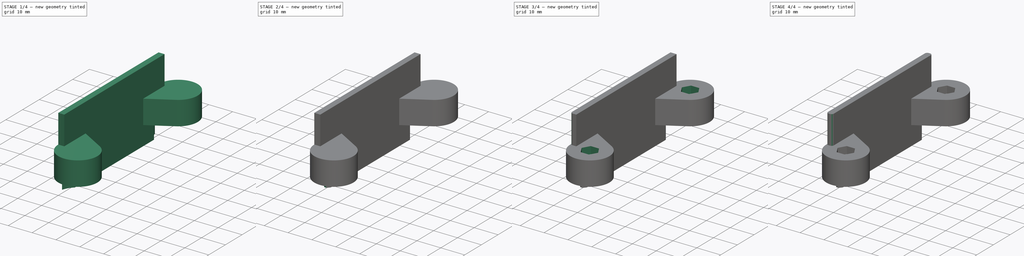
[diagram: build sequence overview — one tinted view per stage of 4, left to right]
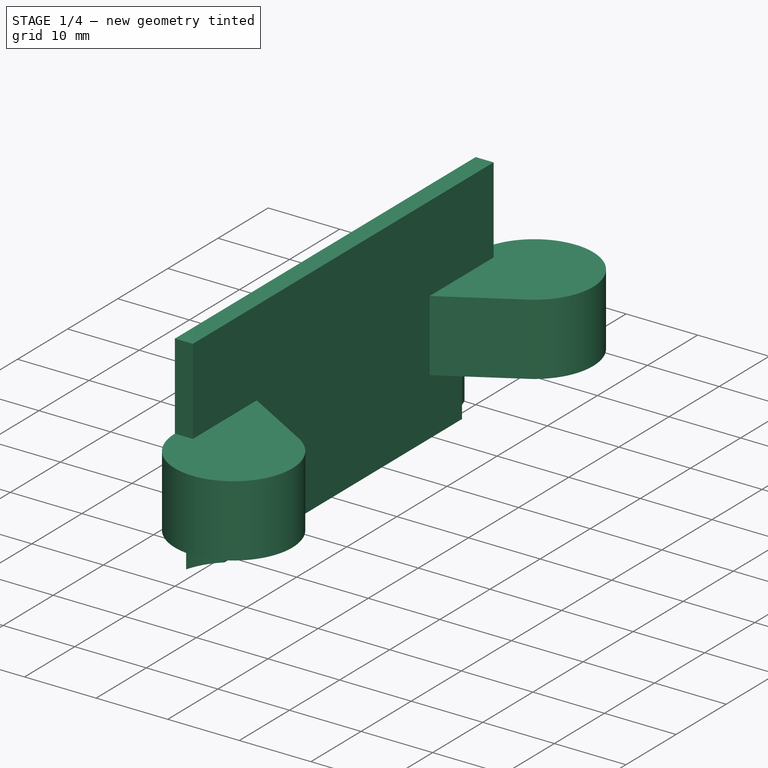
[diagram: stage 1 of 4 — iso view after this stage's code; geometry added in this stage tinted green]
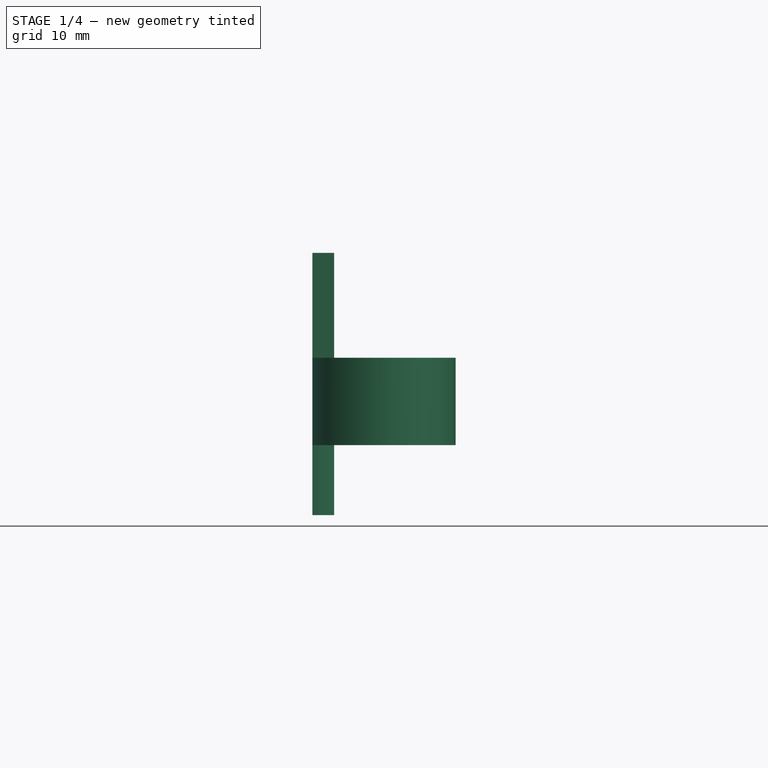
[diagram: stage 1 of 4 — front view after this stage's code; geometry added in this stage tinted green]
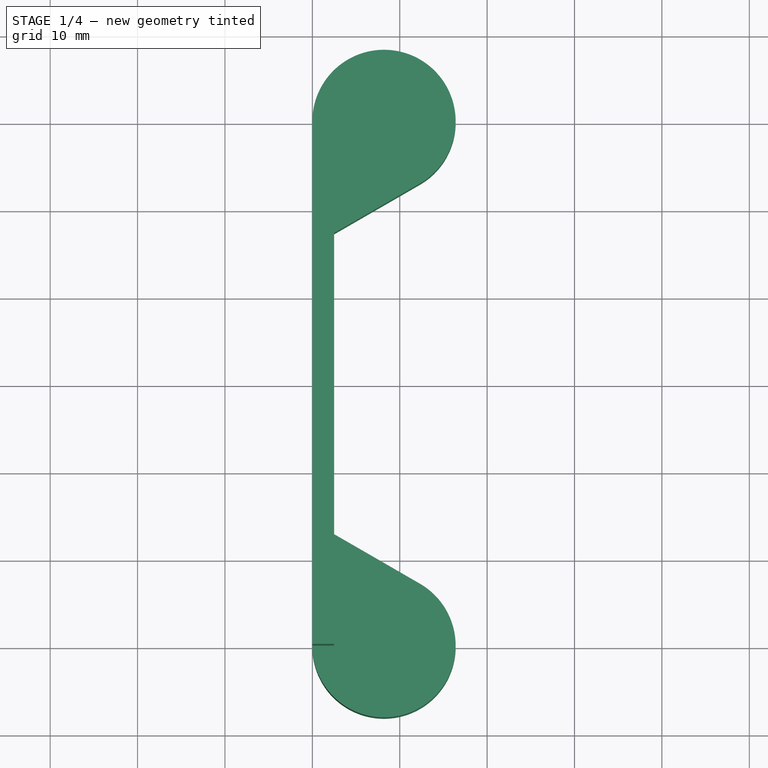
[diagram: stage 1 of 4 — top view after this stage's code; geometry added in this stage tinted green]
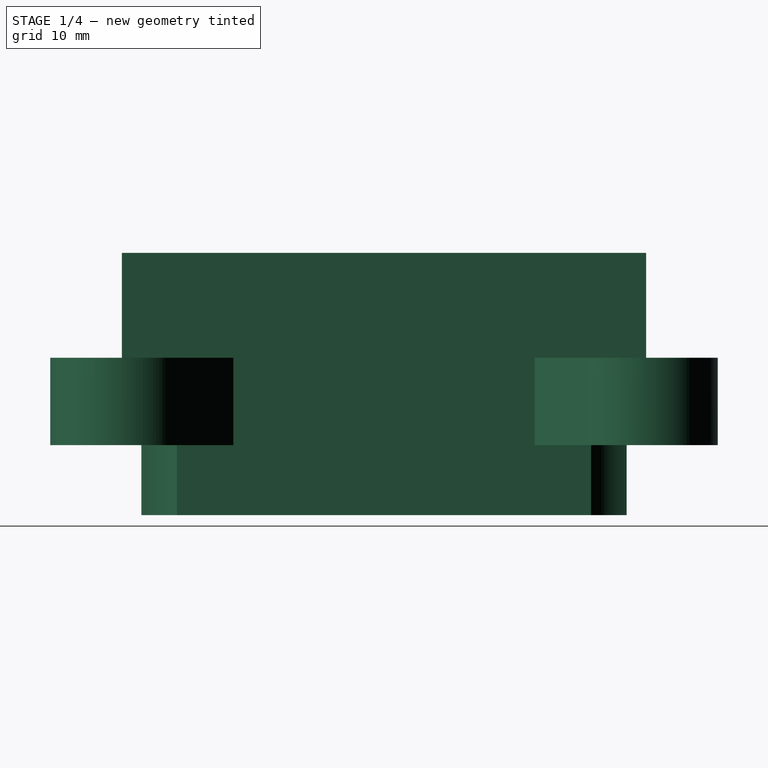
[diagram: stage 1 of 4 — right view after this stage's code; geometry added in this stage tinted green]
FCSTD DOCUMENT  (FreeCAD 0.20R29603 (Git))
Label: RecvHolder
License: All rights reserved
LicenseURL: http://en.wikipedia.org/wiki/All_rights_reserved
objects: PartDesign::Fillet×8, Sketcher::SketchObject×5, PartDesign::Pad×2, PartDesign::Pocket×2, PartDesign::Hole×1, PartDesign::Body×1
note: 32 computed .brp shape members not serialized (recipe doc carries the construction recipe); baked Part::Feature solids carry a one-line shape summary decoded from their .brp

FEATURE [Sketcher::SketchObject] Sketch
  FullyConstrained = true
  MapMode = 5
  Placement = pos=(0,0,0) rot=(0.57735,0.57735,0.57735;2.0944rad)
  Support = -> [YZ_Plane]
  sketch-geometry (4):
    g0: LineSegment StartX=30 StartY=0 StartZ=0 EndX=-30 EndY=0 EndZ=0
    g1: LineSegment StartX=-30 StartY=0 StartZ=0 EndX=-30 EndY=30 EndZ=0
    g2: LineSegment StartX=-30 StartY=30 StartZ=0 EndX=30 EndY=30 EndZ=0
    g3: LineSegment StartX=30 StartY=30 StartZ=0 EndX=30 EndY=0 EndZ=0
  constraints (12):
    c: Coincident(g0,g1)
    c: Coincident(g1,g2)
    c: Coincident(g2,g3)
    c: Coincident(g3,g0)
    c: Horizontal(g0)
    c: Horizontal(g2)
    c: Vertical(g1)
    c: Vertical(g3)
    c: PointOnObject(g0,g-1)
    c: DistanceX(g-1,g0) = 30
    c: DistanceX(g0,g-1) = 30
    c: DistanceY(g-1,g1) = 30
FEATURE [PartDesign::Pad] Pad
  Direction = (1,-2e-16,3e-16)
  Length = 2.5
  Length2 = 10
  Placement = pos=(0,0,0) rot=(0.57735,0.57735,0.57735;2.0944rad)
  Profile = -> Sketch
  ReferenceAxis = -> Sketch [N_Axis]
  Type = 0
FEATURE [Sketcher::SketchObject] Sketch001  label="huj;"
  AttachmentOffset = pos=(0,0,8) rot=(0,0,-1;1.5708rad)
  FullyConstrained = true
  MapMode = 5
  Placement = pos=(0,0,8) rot=(0,0,-1;1.5708rad)
  Support = -> [XY_Plane]
  sketch-geometry (6):
    g0: ArcOfCircle CenterX=-30 CenterY=8.2 CenterZ=0 NormalX=0 NormalY=0 NormalZ=1 AngleXU=0 Radius=8.2 StartAngle=0.523599 EndAngle=5.36814
    g1: ArcOfCircle CenterX=30 CenterY=8.2 CenterZ=0 NormalX=0 NormalY=0 NormalZ=1 AngleXU=0 Radius=8.2 StartAngle=4.05664 EndAngle=8.90118
    g2: LineSegment StartX=-22.8986 StartY=12.3 StartZ=0 EndX=-17.2406 EndY=2.5 EndZ=0
    g3: LineSegment StartX=22.8986 StartY=12.3 StartZ=0 EndX=17.2406 EndY=2.5 EndZ=0
    g4: LineSegment StartX=-25 StartY=1.70077 StartZ=0 EndX=-17.2406 EndY=2.5 EndZ=0
    g5: LineSegment StartX=17.2406 StartY=2.5 StartZ=0 EndX=25 EndY=1.70077 EndZ=0
  constraints (18):
    c: DistanceY(g-1,g0) = 8.2
    c: DistanceY(g-1,g1) = 8.2
    c: Diameter(g0) = 16.4
    c: Diameter(g1) = 16.4
    c: DistanceX(g-1,g1) = 30
    c: DistanceX(g0,g-1) = 30
    c: DistanceX(g0,g-1) = 25
    c: DistanceX(g-1,g1) = 25
    c: Tangent(g3,g1) = -1.5708
    c: Tangent(g2,g0) = 1.5708
    c: DistanceY(g-1,g2) = 2.5
    c: DistanceY(g-1,g3) = 2.5
    c: Angle(g-1,g2) = 2.0944
    c: Angle(g-1,g3) = 1.0472
    c: Coincident(g4,g0)
    c: Coincident(g4,g2)
    c: Coincident(g5,g3)
    c: Coincident(g5,g1)
FEATURE [PartDesign::Pad] Pad001
  BaseFeature = -> Pad
  Direction = (0,0,1)
  Length = 10
  Length2 = 10
  Placement = pos=(0,0,0) rot=(0.57735,0.57735,0.57735;2.0944rad)
  Profile = -> Sketch001
  ReferenceAxis = -> Sketch001 [N_Axis]
  Type = 0
FEATURE [Sketcher::SketchObject] Sketch002
  FullyConstrained = true
  MapMode = 5
  Placement = pos=(0,0,-6.7e-15) rot=(0.707107,0.707107,0;3.14159rad)
  Support = -> [Pad001]
  sketch-geometry (2):
    g0: Circle CenterX=-30 CenterY=8.2 CenterZ=0 NormalX=0 NormalY=0 NormalZ=1 AngleXU=0 Radius=8.5
    g1: Circle CenterX=30 CenterY=8.2 CenterZ=0 NormalX=0 NormalY=0 NormalZ=1 AngleXU=0 Radius=8.5
  constraints (6):
    c: DistanceY(g-1,g1) = 8.2
    c: DistanceY(g-1,g0) = 8.2
    c: Diameter(g0) = 17
    c: Diameter(g1) = 17
    c: DistanceX(g0,g-1) = 30
    c: DistanceX(g-1,g1) = 30
FEATURE [PartDesign::Pocket] Pocket
  BaseFeature = -> Pad001
  Direction = (-7e-16,7e-16,1)
  Length = 8
  Length2 = 5
  Placement = pos=(0,0,0) rot=(0.57735,0.57735,0.57735;2.0944rad)
  Profile = -> Sketch002
  ReferenceAxis = -> Sketch002 [N_Axis]
  Type = 0
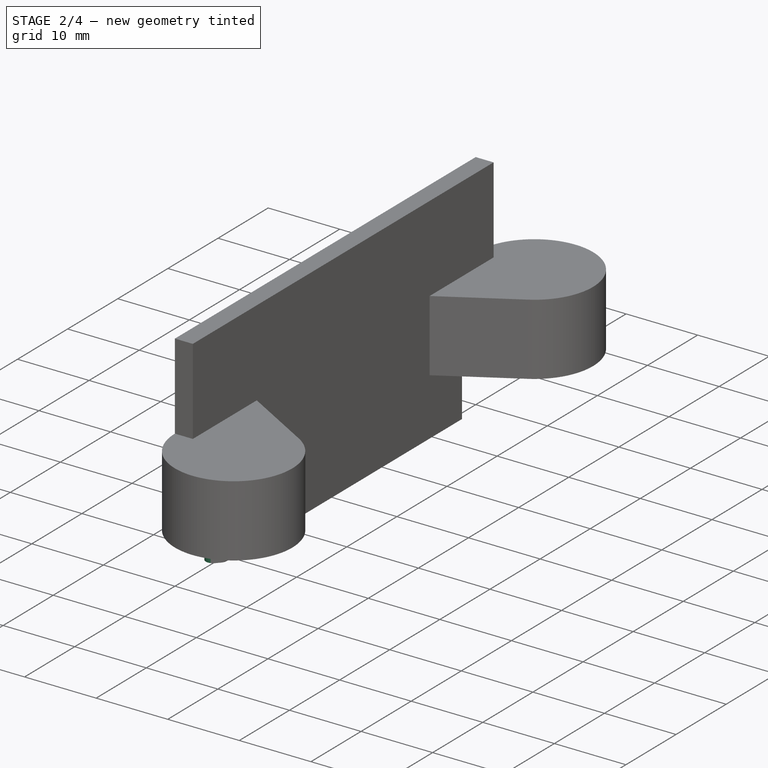
[diagram: stage 2 of 4 — iso view after this stage's code; geometry added in this stage tinted green]
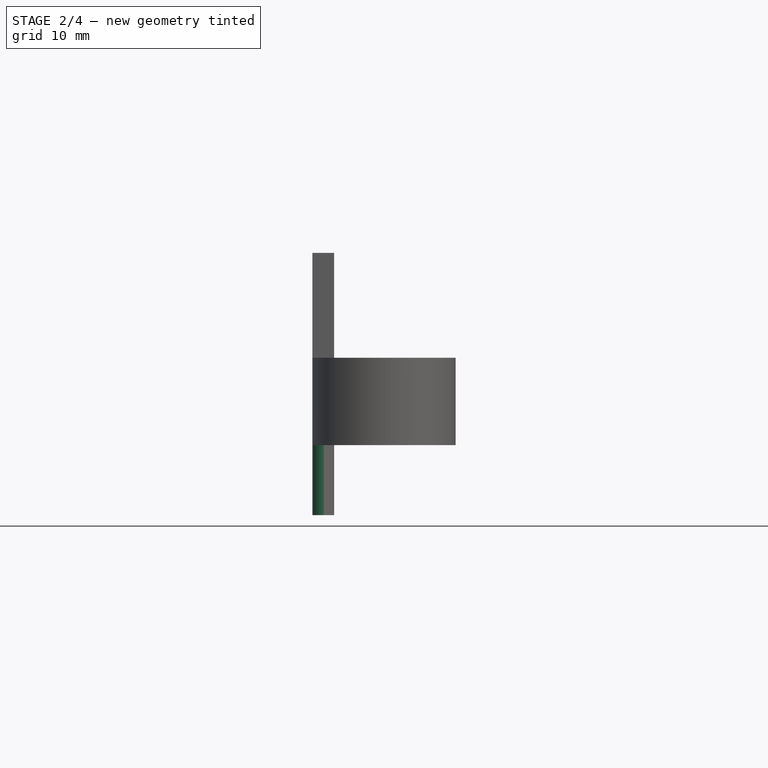
[diagram: stage 2 of 4 — front view after this stage's code; geometry added in this stage tinted green]
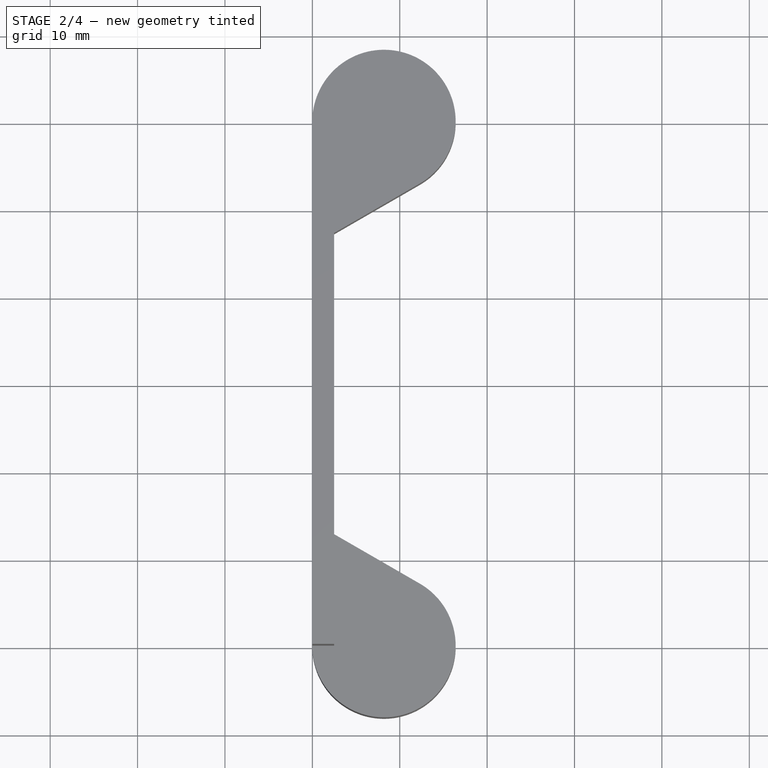
[diagram: stage 2 of 4 — top view after this stage's code; geometry added in this stage tinted green]
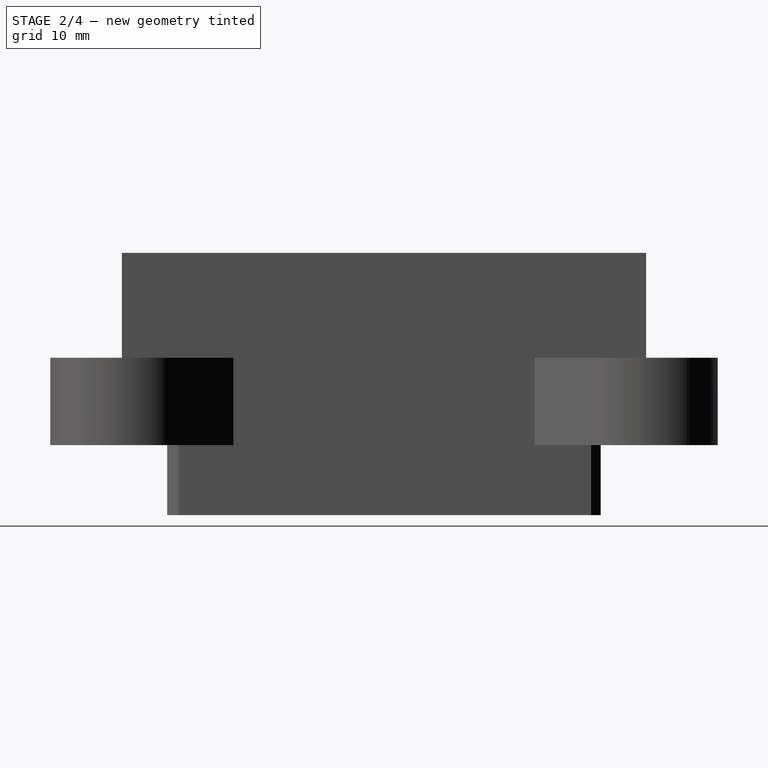
[diagram: stage 2 of 4 — right view after this stage's code; geometry added in this stage tinted green]
FEATURE [PartDesign::Fillet] Fillet
  Base = -> Pocket [Edge13]
  BaseFeature = -> Pocket
  Placement = pos=(0,0,0) rot=(0.57735,0.57735,0.57735;2.0944rad)
  Radius = 1
  SupportTransform = false
  UseAllEdges = false
FEATURE [PartDesign::Fillet] Fillet001
  Base = -> Fillet [Edge7]
  BaseFeature = -> Fillet
  Placement = pos=(0,0,0) rot=(0.57735,0.57735,0.57735;2.0944rad)
  Radius = 1
  SupportTransform = false
  UseAllEdges = false
FEATURE [PartDesign::Fillet] Fillet002
  Base = -> Fillet001 [Edge22]
  BaseFeature = -> Fillet001
  Placement = pos=(0,0,0) rot=(0.57735,0.57735,0.57735;2.0944rad)
  Radius = 1
  SupportTransform = false
  UseAllEdges = false
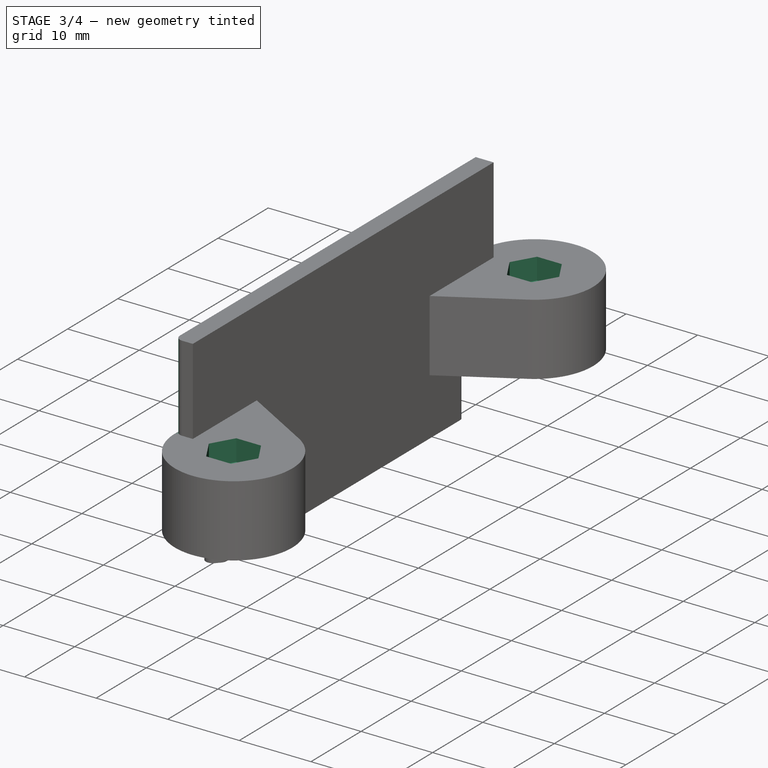
[diagram: stage 3 of 4 — iso view after this stage's code; geometry added in this stage tinted green]
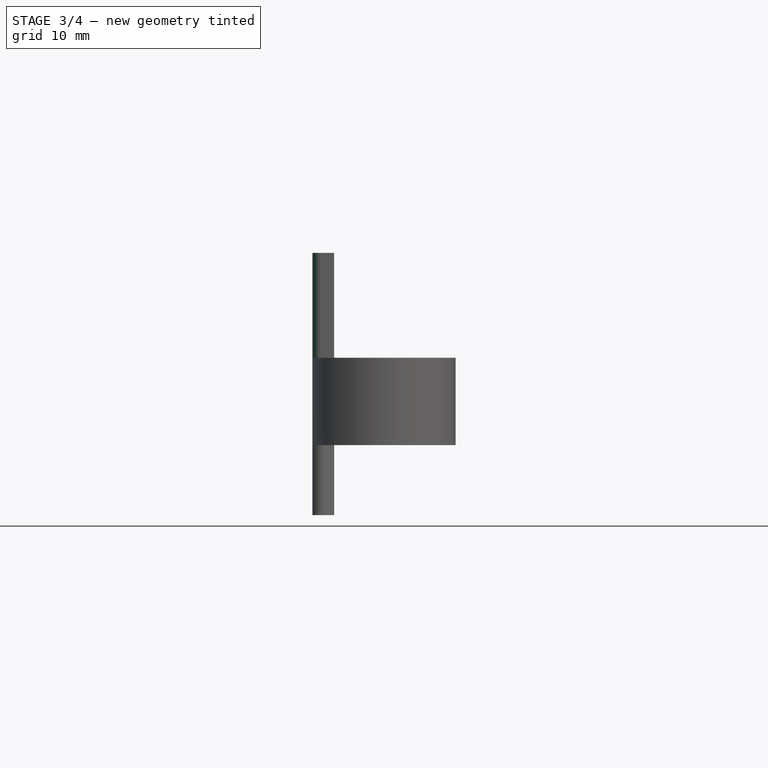
[diagram: stage 3 of 4 — front view after this stage's code; geometry added in this stage tinted green]
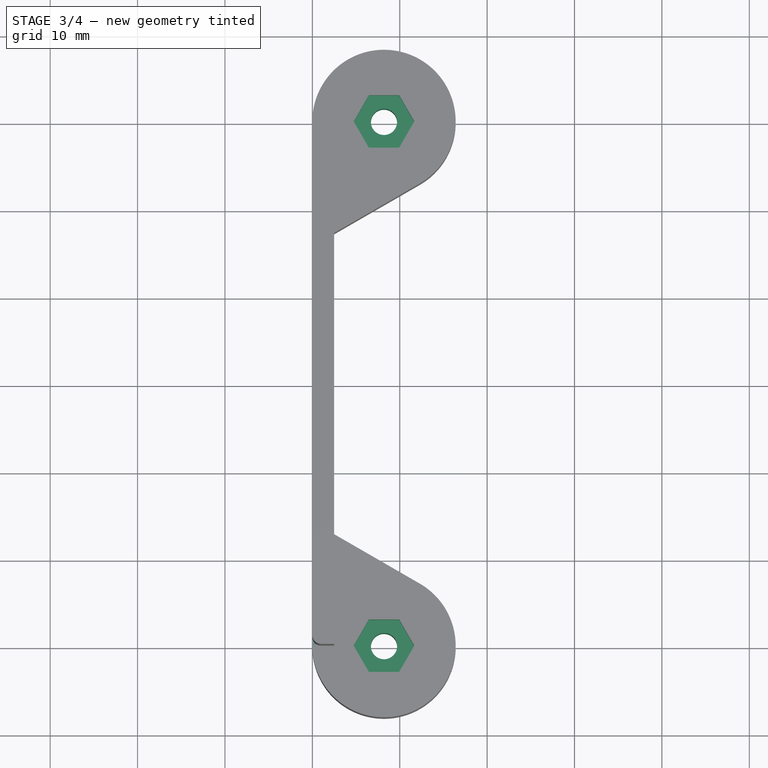
[diagram: stage 3 of 4 — top view after this stage's code; geometry added in this stage tinted green]
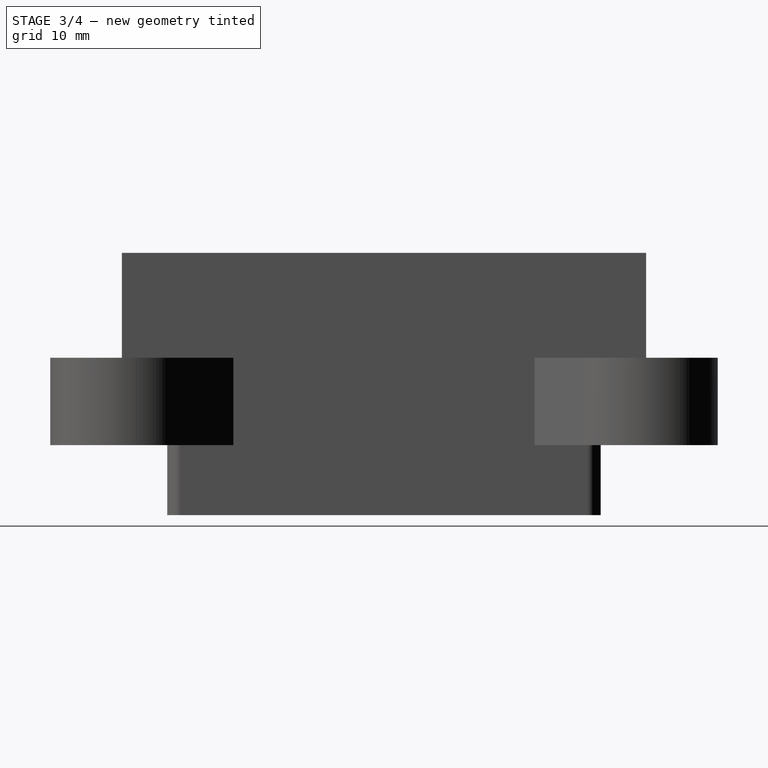
[diagram: stage 3 of 4 — right view after this stage's code; geometry added in this stage tinted green]
FEATURE [PartDesign::Fillet] Fillet003
  Base = -> Fillet002 [Edge15]
  BaseFeature = -> Fillet002
  Placement = pos=(0,0,0) rot=(0.57735,0.57735,0.57735;2.0944rad)
  Radius = 1
  SupportTransform = false
  UseAllEdges = false
FEATURE [Sketcher::SketchObject] Sketch003
  FullyConstrained = false
  MapMode = 5
  Placement = pos=(-1.2e-14,4e-15,18) rot=(0,0,-1;1.5708rad)
  Support = -> [Fillet003]
  sketch-geometry (2):
    g0: Circle CenterX=-30 CenterY=8.2 CenterZ=0 NormalX=0 NormalY=0 NormalZ=1 AngleXU=0 Radius=3.01666
    g1: Circle CenterX=30 CenterY=8.2 CenterZ=0 NormalX=0 NormalY=0 NormalZ=1 AngleXU=0 Radius=2.39382
  constraints (4):
    c: DistanceY(g-1,g1) = 8.2
    c: DistanceY(g-1,g0) = 8.2
    c: DistanceX(g0,g-1) = 30
    c: DistanceX(g-1,g1) = 30
FEATURE [PartDesign::Hole] Hole
  BaseFeature = -> Fillet003
  CustomThreadClearance = 0
  Depth = 25
  DepthType = 0
  Diameter = 3
  DrillForDepth = false
  DrillPoint = 1
  DrillPointAngle = 118
  HoleCutCountersinkAngle = 90
  HoleCutCustomValues = false
  HoleCutDepth = 0
  HoleCutDiameter = 6.1
  HoleCutType = 0
  ModelThread = false
  Placement = pos=(0,0,0) rot=(0.57735,0.57735,0.57735;2.0944rad)
  Profile = -> Sketch003
  Tapered = false
  TaperedAngle = 90
  ThreadClass = 0
  ThreadDepth = 25
  ThreadDepthType = 0
  ThreadDirection = 0
  ThreadFit = 0
  ThreadSize = 0
  ThreadType = 0
  Threaded = false
  UseCustomThreadClearance = false
FEATURE [Sketcher::SketchObject] Sketch004
  FullyConstrained = true
  MapMode = 5
  Placement = pos=(-1.8e-14,6e-15,18) rot=(0,0,-1;1.5708rad)
  Support = -> [Hole]
  sketch-geometry (14):
    g0: LineSegment StartX=-27 StartY=6.46795 StartZ=0 EndX=-27 EndY=9.93205 EndZ=0
    g1: LineSegment StartX=-27 StartY=9.93205 StartZ=0 EndX=-30 EndY=11.6641 EndZ=0
    g2: LineSegment StartX=-30 StartY=11.6641 StartZ=0 EndX=-33 EndY=9.93205 EndZ=0
    g3: LineSegment StartX=-33 StartY=9.93205 StartZ=0 EndX=-33 EndY=6.46795 EndZ=0
    g4: LineSegment StartX=-33 StartY=6.46795 StartZ=0 EndX=-30 EndY=4.7359 EndZ=0
    g5: LineSegment StartX=-30 StartY=4.7359 StartZ=0 EndX=-27 EndY=6.46795 EndZ=0
    g6: Circle CenterX=-30 CenterY=8.2 CenterZ=0 NormalX=0 NormalY=0 NormalZ=1 AngleXU=0 Radius=3.4641
    g7: LineSegment StartX=33 StartY=6.46795 StartZ=0 EndX=33 EndY=9.93205 EndZ=0
    g8: LineSegment StartX=33 StartY=9.93205 StartZ=0 EndX=30 EndY=11.6641 EndZ=0
    g9: LineSegment StartX=30 StartY=11.6641 StartZ=0 EndX=27 EndY=9.93205 EndZ=0
    g10: LineSegment StartX=27 StartY=9.93205 StartZ=0 EndX=27 EndY=6.46795 EndZ=0
    g11: LineSegment StartX=27 StartY=6.46795 StartZ=0 EndX=30 EndY=4.7359 EndZ=0
    g12: LineSegment StartX=30 StartY=4.7359 StartZ=0 EndX=33 EndY=6.46795 EndZ=0
    g13: Circle CenterX=30 CenterY=8.2 CenterZ=0 NormalX=0 NormalY=0 NormalZ=1 AngleXU=0 Radius=3.4641
  constraints (34):
    c: Coincident(g0,g1)
    c: Coincident(g1,g2)
    c: Coincident(g2,g3)
    c: Coincident(g3,g4)
    c: Coincident(g4,g5)
    c: Coincident(g5,g0)
    c: Equal(g0, g1-g5) x5
    c: PointOnObject(g0,g6)
    c: PointOnObject(g1,g6)
    c: PointOnObject(g2,g6)
    c: PointOnObject(g3,g6)
    c: PointOnObject(g4,g6)
    c: PointOnObject(g5,g6)
    c: Coincident(g7,g8)
    c: Coincident(g8,g9)
    c: Coincident(g9,g10)
    c: Coincident(g10,g11)
    c: Coincident(g11,g12)
    c: Coincident(g12,g7)
    c: Equal(g7, g8-g12) x5
    c: PointOnObject(g7,g13)
    c: PointOnObject(g8,g13)
    c: PointOnObject(g9,g13)
    c: PointOnObject(g10,g13)
    c: PointOnObject(g11,g13)
    c: PointOnObject(g12,g13)
    c: DistanceY(g-1,g6) = 8.2
    c: DistanceY(g-1,g13) = 8.2
    c: DistanceX(g-1,g13) = 30
    c: DistanceX(g6,g-1) = 30
    c: Angle(g12,g-1) = 2.61799
    c: Angle(g-1,g5) = 0.523599
    c: Distance(g13,g9) = 3
    c: Distance(g6,g2) = 3
FEATURE [PartDesign::Pocket] Pocket001
  BaseFeature = -> Hole
  Direction = (1e-15,-3e-16,-1)
  Length = 3
  Length2 = 5
  Placement = pos=(0,0,0) rot=(0.57735,0.57735,0.57735;2.0944rad)
  Profile = -> Sketch004
  ReferenceAxis = -> Sketch004 [N_Axis]
  Type = 0
FEATURE [PartDesign::Fillet] Fillet004
  Base = -> Pocket001 [Edge38]
  BaseFeature = -> Pocket001
  Placement = pos=(0,0,0) rot=(0.57735,0.57735,0.57735;2.0944rad)
  Radius = 1
  SupportTransform = false
  UseAllEdges = false
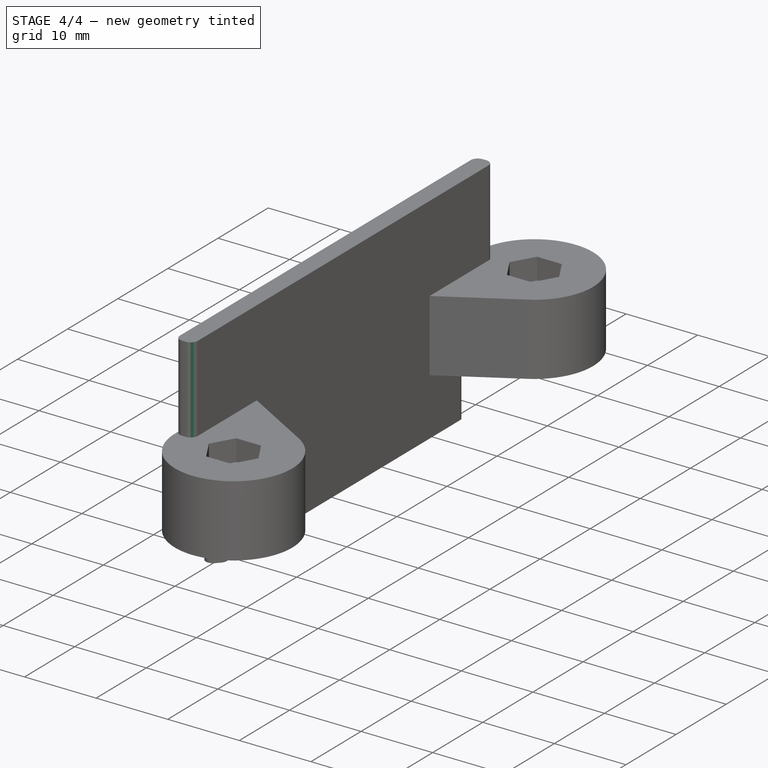
[diagram: stage 4 of 4 — iso view after this stage's code; geometry added in this stage tinted green]
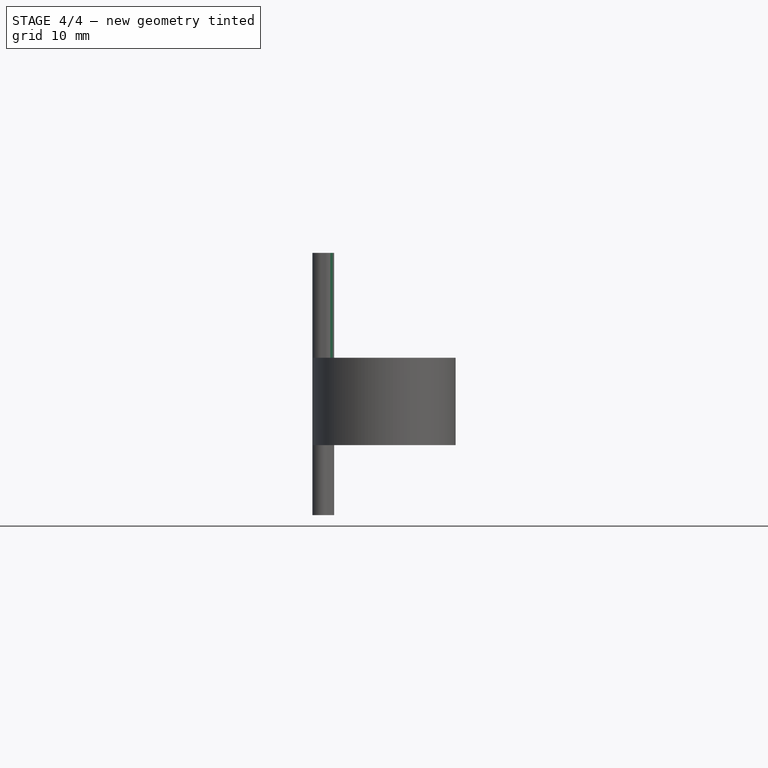
[diagram: stage 4 of 4 — front view after this stage's code; geometry added in this stage tinted green]
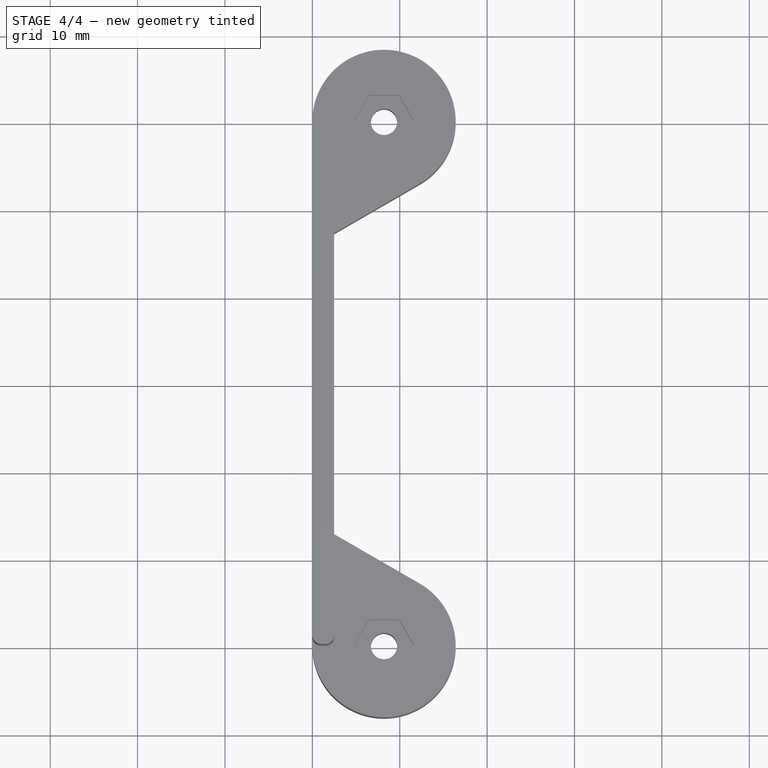
[diagram: stage 4 of 4 — top view after this stage's code; geometry added in this stage tinted green]
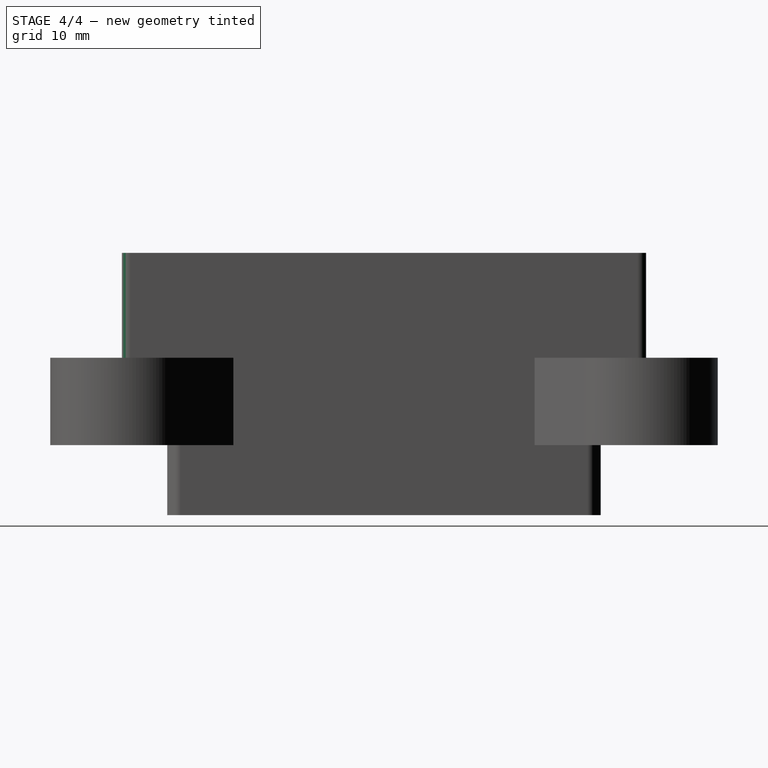
[diagram: stage 4 of 4 — right view after this stage's code; geometry added in this stage tinted green]
FEATURE [PartDesign::Fillet] Fillet005
  Base = -> Fillet004 [Edge57]
  BaseFeature = -> Fillet004
  Placement = pos=(0,0,0) rot=(0.57735,0.57735,0.57735;2.0944rad)
  Radius = 1
  SupportTransform = false
  UseAllEdges = false
FEATURE [PartDesign::Fillet] Fillet006
  Base = -> Fillet005 [Edge24]
  BaseFeature = -> Fillet005
  Placement = pos=(0,0,0) rot=(0.57735,0.57735,0.57735;2.0944rad)
  Radius = 1
  SupportTransform = false
  UseAllEdges = false
FEATURE [PartDesign::Fillet] Fillet007
  Base = -> Fillet006 [Edge26]
  BaseFeature = -> Fillet006
  Placement = pos=(0,0,0) rot=(0.57735,0.57735,0.57735;2.0944rad)
  Radius = 1
  SupportTransform = false
  UseAllEdges = false
FEATURE [PartDesign::Body] Body
  Group = -> [Sketch,Pad,Sketch001,Pad001,Sketch002,Pocket,Fillet,Fillet001,Fillet002,Fillet003,Sketch003,Hole,Sketch004,Pocket001,Fillet004,Fillet005,Fillet006,Fillet007]
  Origin = -> Origin
  Tip = -> Fillet007
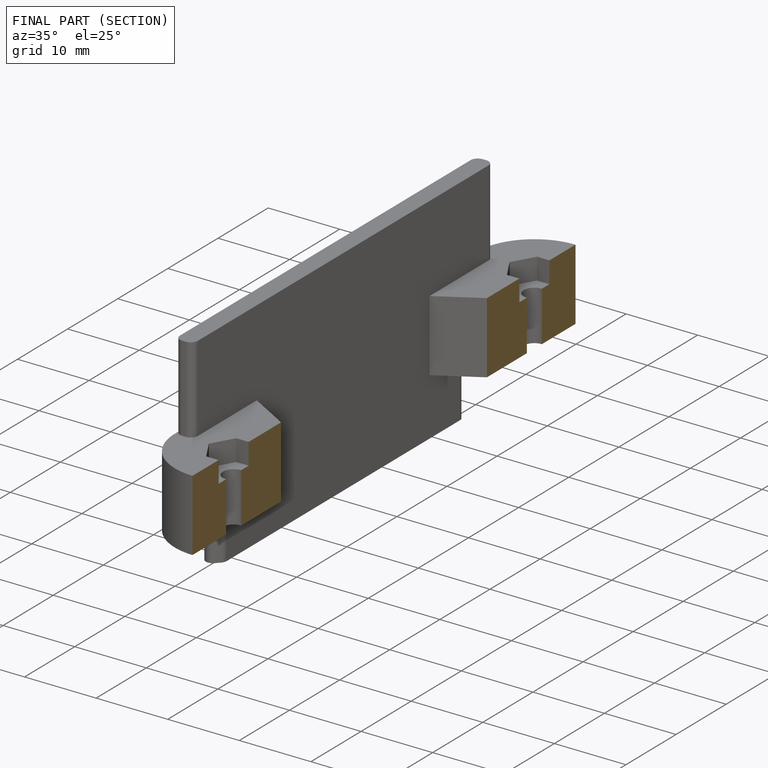
[diagram: finished part — half-section view (interior)]
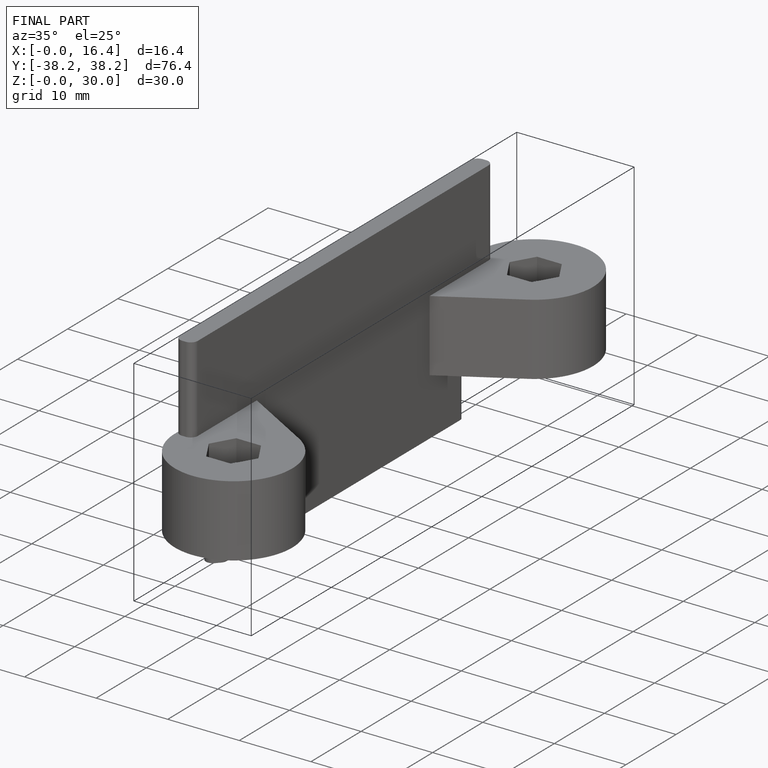
[diagram: finished part — iso view with bounding-box wireframe]
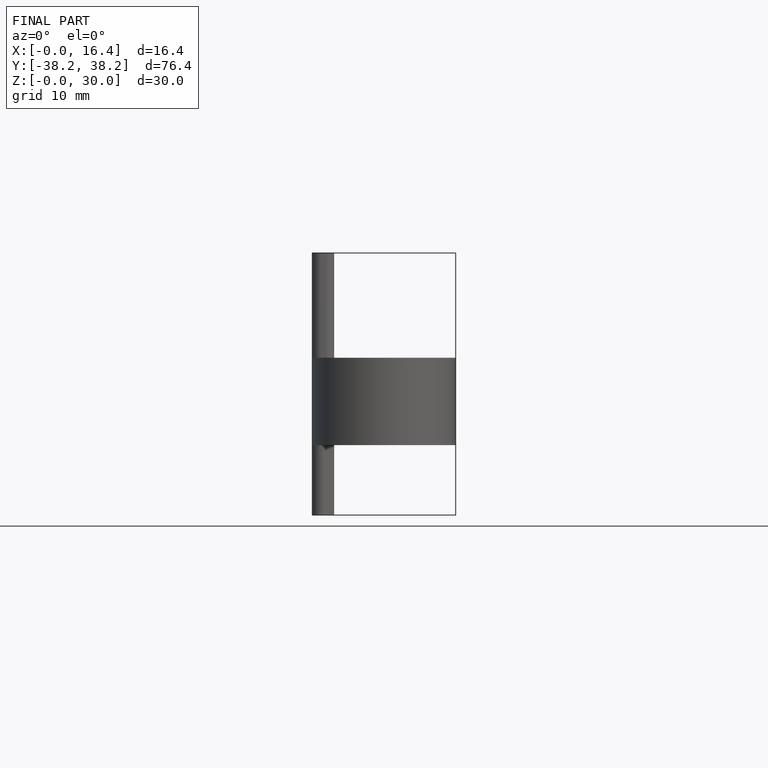
[diagram: finished part — front view with bounding-box wireframe]
